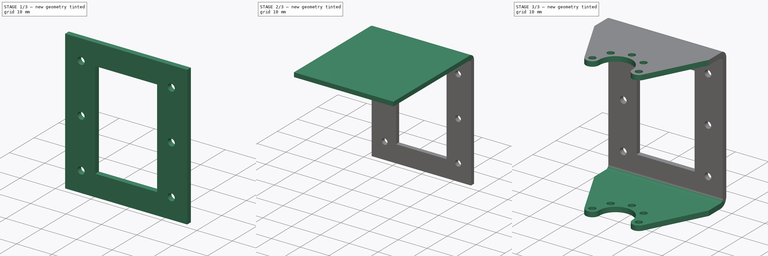
[diagram: build sequence overview — one tinted view per stage of 3, left to right]
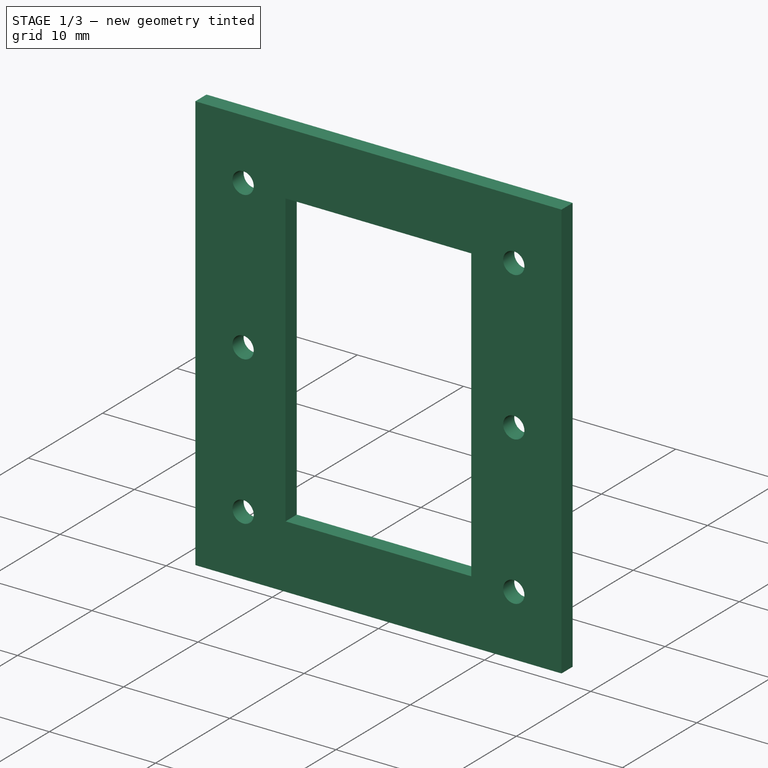
[diagram: stage 1 of 3 — iso view after this stage's code; geometry added in this stage tinted green]
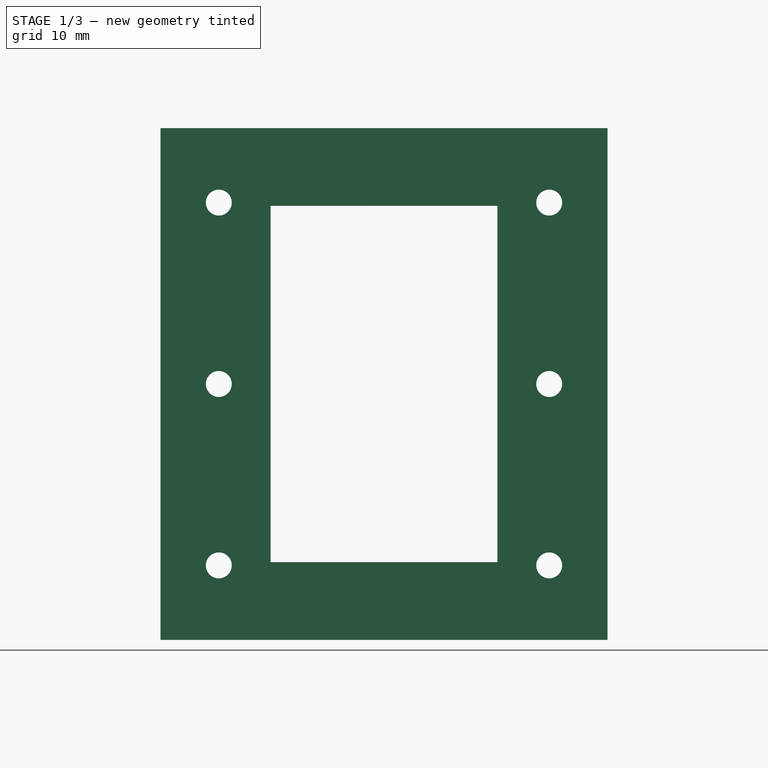
[diagram: stage 1 of 3 — front view after this stage's code; geometry added in this stage tinted green]
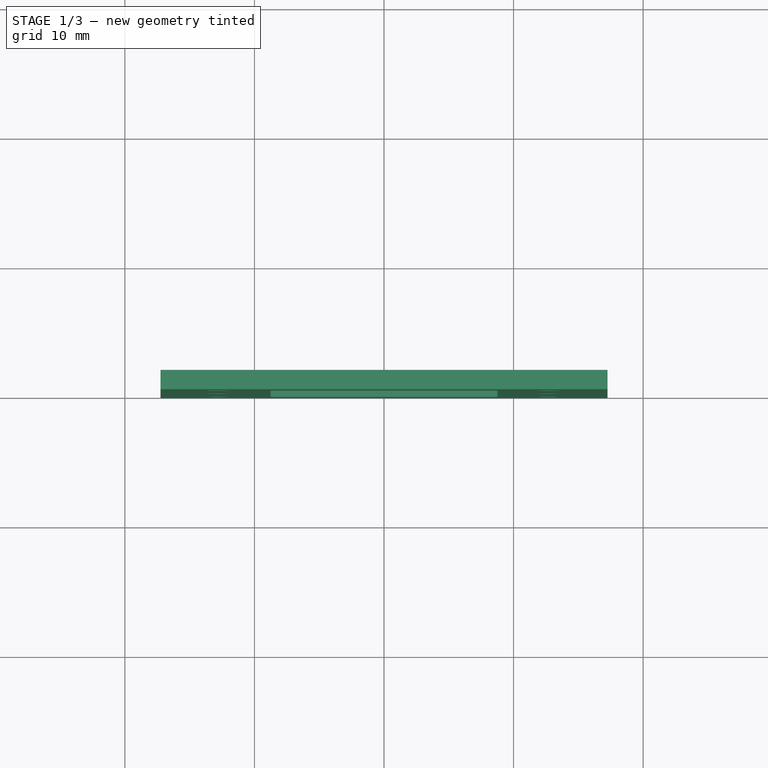
[diagram: stage 1 of 3 — top view after this stage's code; geometry added in this stage tinted green]
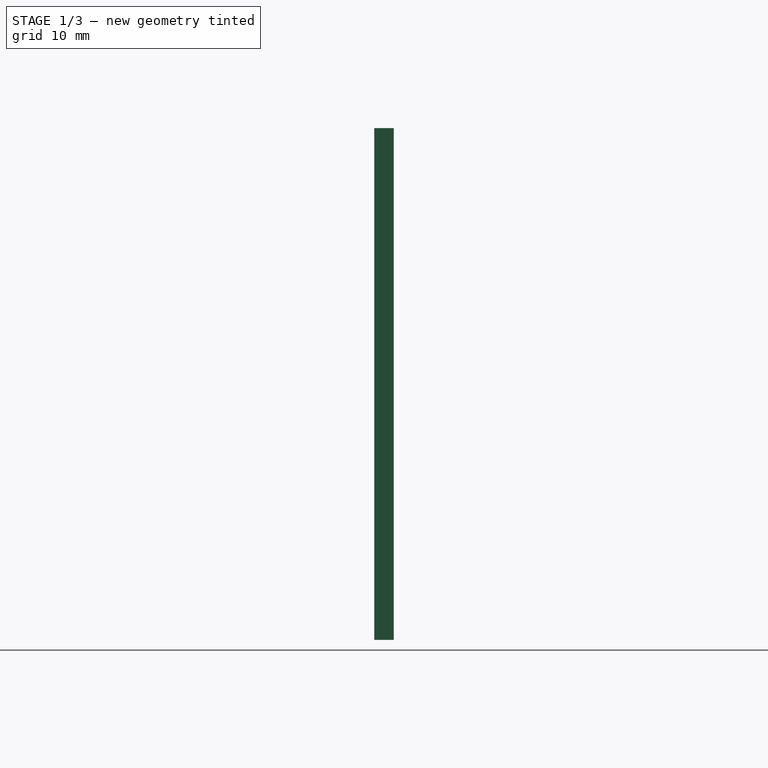
[diagram: stage 1 of 3 — right view after this stage's code; geometry added in this stage tinted green]
FCSTD DOCUMENT  (FreeCAD 0.21R33694 (Git))
Label: MJ_leg_roll
License: All rights reserved
LicenseURL: https://en.wikipedia.org/wiki/All_rights_reserved
objects: Sketcher::SketchObject×3, PartDesign::Pocket×2, PartDesign::FeaturePython×2, Spreadsheet::Sheet×1, PartDesign::Pad×1, PartDesign::Body×1
note: 12 computed .brp shape members not serialized (recipe doc carries the construction recipe); baked Part::Feature solids carry a one-line shape summary decoded from their .brp

FEATURE [Spreadsheet::Sheet] Parameters
  cells = A1='Parameter; B1='Value; C1='Fromula; D1='Tolerance; E1='Comment; A2='BendRadius; B2(BendRadius)=1.5; C2='1.5mm; A3='Thickness; B3(Thickness)=1.5; C3='1.5mm; A4='BendReliefDepth; B4(BendReliefDepth)=0.75; C4='0.75mm; A5='BendReliefWidth; B5(BendReliefWidth)=1.5; C5='1.5mm; A6='CornerReliefSize; B6(CornerReliefSize)=6; C6='6mm; A7='GapSize; B7(GapSize)=1.5; C7='1.5mm; A8='JacobiRadiusSize; B8(JacobiRadiusSize)=1.5; C8='1.5mm; A9='Kファクター; B9(K_____)=0.44; C9='0.44; A10='MinimumRemnant; B10(MinimumRemnant)=3; C10='3mm; A11='SeamGap; B11(SeamGap)=0.01; C11='0.01mm; A12='TransitionRadius; B12(TransitionRadius)=1.5; C12='1.5mm; A13='d0; B13(d0_)=34.5; C13='34.5mm; A14='d1; B14(d1_)=39.5; C14='39.5mm; A15='d10; B15(d10_)=14; C15='14mm; A16='d11; B16(d11_)=25.5; C16='25.5mm; A17='d12; B17(d12_)=6; C17='6mm; A18='d13; B18(d13_)=4; C18='4mm; A19='d14; B19(d14_)=1.5; C19='1.5mm; A20='d15; B20(d15_)=0; C20='0°; A21='d16; B21(d16_)=1.5; C21='1.5mm; A22='d17; B22(d17_)=0.75; C22='0.75mm; A23='d18; B23(d18_)=3; C23='3mm; A24='d19; B24(d19_)=1.5; C24='1.5mm; A25='d2; B25(d2_)=1.5; C25='1.5mm; A26='d20; B26(d20_)=40; C26='40mm; A27='d21; B27(d21_)=90; C27='90°; A28='d22; B28(d22_)=0.68; C28='0.68mm; A29='d23; B29(d23_)=6; C29='6mm; A30='d24; B30(d24_)=1.5; C30='1.5mm; A31='d25; B31(d25_)=1.5; C31='1.5mm; A32='d26; B32(d26_)=2; C32='2mm; A33='d27; B33(d27_)=10; C33='10mm; A34='d28; B34(d28_)=7; C34='7mm; A35='d29; B35(d29_)=5; C35='5; A36='d3; B36(d3_)=2; C36='2mm; A37='d30; B37(d30_)=5; C37='5; A38='d31; B38(d31_)=180; C38='180°; A39='d33; B39(d33_)=23; C39='23mm; A40='d34; B40(d34_)=6; C40='6mm; A41='d35; B41(d35_)=10; C41='10mm; A42='d36; B42(d36_)=0; C42='0°; A43='d37; B43(d37_)=2; C43='2mm; A44='d4; B44(d4_)=2; C44='2mm; A45='d5; B45(d5_)=2; C45='2mm; A46='d6; B46(d6_)=2; C46='2mm; A47='d7; B47(d7_)=2; C47='2mm; A48='d8; B48(d8_)=2; C48='2mm; A49='d9; B49(d9_)=14; C49='14mm
FEATURE [Sketcher::SketchObject] ____________1  label="スケッチ1"
  FullyConstrained = true
  Placement = pos=(0,0,0) rot=(0,0.707107,0.707107;3.14159rad)
  sketch-geometry (6):
    g0: LineSegment StartX=-17.25 StartY=19.75 StartZ=0 EndX=17.25 EndY=19.75 EndZ=0
    g1: LineSegment StartX=17.25 StartY=19.75 StartZ=0 EndX=17.25 EndY=-19.75 EndZ=0
    g2: LineSegment StartX=17.25 StartY=-19.75 StartZ=0 EndX=-17.25 EndY=-19.75 EndZ=0
    g3: LineSegment StartX=-17.25 StartY=-19.75 StartZ=0 EndX=-17.25 EndY=19.75 EndZ=0
    g4: LineSegment StartX=-17.25 StartY=19.75 StartZ=0 EndX=17.25 EndY=-19.75 EndZ=0
    g5: LineSegment StartX=17.25 StartY=19.75 StartZ=0 EndX=-17.25 EndY=-19.75 EndZ=0
  constraints (16):
    c: Perpendicular(g0,g1)
    c: Parallel(g0,g2)
    c: Parallel(g1,g3)
    c: Horizontal(g0)
    c: PointOnObject(g-1,g5)
    c: PointOnObject(g-1,g4)
    c: Coincident(g0,g3)
    c: Coincident(g0,g4)
    c: Coincident(g1,g2)
    c: Coincident(g1,g4)
    c: Coincident(g0,g1)
    c: Coincident(g0,g5)
    c: Coincident(g2,g3)
    c: Coincident(g2,g5)
    c: DistanceX(g2,g2) = 34.5
    c: DistanceY(g3,g3) = 39.5
FEATURE [PartDesign::Pad] Pad
  Direction = (0,1,-2e-16)
  Length = 1.5
  Length2 = 10
  Placement = pos=(0,0,0) rot=(0,0.707107,0.707107;3.14159rad)
  Profile = -> ____________1
  ReferenceAxis = -> ____________1 [N_Axis]
  Type = 0
FEATURE [Sketcher::SketchObject] ____________2  label="スケッチ2"
  FullyConstrained = true
  MapMode = 5
  Placement = pos=(0,1.5,-7e-16) rot=(0,0.707107,0.707107;3.14159rad)
  Support = -> [Pad]
  sketch-geometry (16):
    g0: LineSegment StartX=8.75 StartY=-13.75 StartZ=0 EndX=-8.75 EndY=-13.75 EndZ=0
    g1: LineSegment StartX=-8.75 StartY=-13.75 StartZ=0 EndX=-8.75 EndY=13.75 EndZ=0
    g2: LineSegment StartX=-8.75 StartY=13.75 StartZ=0 EndX=8.75 EndY=13.75 EndZ=0
    g3: LineSegment StartX=8.75 StartY=13.75 StartZ=0 EndX=8.75 EndY=-13.75 EndZ=0
    g4: LineSegment StartX=8.75 StartY=-13.75 StartZ=0 EndX=-8.75 EndY=13.75 EndZ=0
    g5: LineSegment StartX=-8.75 StartY=-13.75 StartZ=0 EndX=8.75 EndY=13.75 EndZ=0
    g6: Circle CenterX=-12.75 CenterY=-14 CenterZ=0 NormalX=0 NormalY=0 NormalZ=1 AngleXU=0 Radius=1
    g7: Circle CenterX=-12.75 CenterY=0 CenterZ=0 NormalX=0 NormalY=0 NormalZ=1 AngleXU=0 Radius=1
    g8: Circle CenterX=-12.75 CenterY=14 CenterZ=0 NormalX=0 NormalY=0 NormalZ=1 AngleXU=0 Radius=1
    g9: Circle CenterX=12.75 CenterY=-14 CenterZ=0 NormalX=0 NormalY=0 NormalZ=1 AngleXU=0 Radius=1
    g10: Circle CenterX=12.75 CenterY=0 CenterZ=0 NormalX=0 NormalY=0 NormalZ=1 AngleXU=0 Radius=1
    g11: Circle CenterX=12.75 CenterY=14 CenterZ=0 NormalX=0 NormalY=0 NormalZ=1 AngleXU=0 Radius=1
    g12: LineSegment StartX=-12.75 StartY=14 StartZ=0 EndX=-12.75 EndY=0 EndZ=0
    g13: LineSegment StartX=-12.75 StartY=-14 StartZ=0 EndX=-12.75 EndY=0 EndZ=0
    g14: LineSegment StartX=12.75 StartY=14 StartZ=0 EndX=12.75 EndY=0 EndZ=0
    g15: LineSegment StartX=12.75 StartY=0 StartZ=0 EndX=12.75 EndY=-14 EndZ=0
  constraints (41):
    c: PointOnObject(g-1,g5)
    c: PointOnObject(g-1,g4)
    c: Coincident(g0,g3)
    c: Coincident(g0,g4)
    c: Coincident(g1,g2)
    c: Coincident(g1,g4)
    c: Coincident(g0,g1)
    c: Coincident(g0,g5)
    c: Coincident(g2,g3)
    c: Coincident(g2,g5)
    c: Diameter(g8) = 2
    c: DistanceX(g2,g2) = 17.5
    c: DistanceY(g3,g3) = 27.5
    c: Vertical(g3)
    c: Vertical(g1)
    c: Horizontal(g2)
    c: Horizontal(g0)
    c: PointOnObject(g7,g-1)
    c: Coincident(g12,g8)
    c: Coincident(g12,g7)
    c: Vertical(g12)
    c: Coincident(g13,g6)
    c: Coincident(g13,g7)
    c: Vertical(g13)
    c: Coincident(g14,g11)
    c: Coincident(g14,g10)
    c: Vertical(g14)
    c: Coincident(g15,g10)
    c: Coincident(g15,g9)
    c: Vertical(g15)
    c: Equal(g12,g13)
    c: Equal(g13,g14)
    c: Equal(g14,g15)
    c: DistanceX(g7,g-1) = 12.75
    c: DistanceY(g12,g12) = 14
    c: Symmetric(g7,g10,g-2)
    c: Equal(g7,g6)
    c: Equal(g6,g9)
    c: Equal(g9,g10)
    c: Equal(g10,g11)
    c: Equal(g11,g8)
FEATURE [PartDesign::Pocket] Pocket
  BaseFeature = -> Pad
  Direction = (1e-16,-1,2e-16)
  Length = 5
  Length2 = 5
  Placement = pos=(0,0,0) rot=(0,0.707107,0.707107;3.14159rad)
  Profile = -> ____________2
  ReferenceAxis = -> ____________2 [N_Axis]
  Type = 1
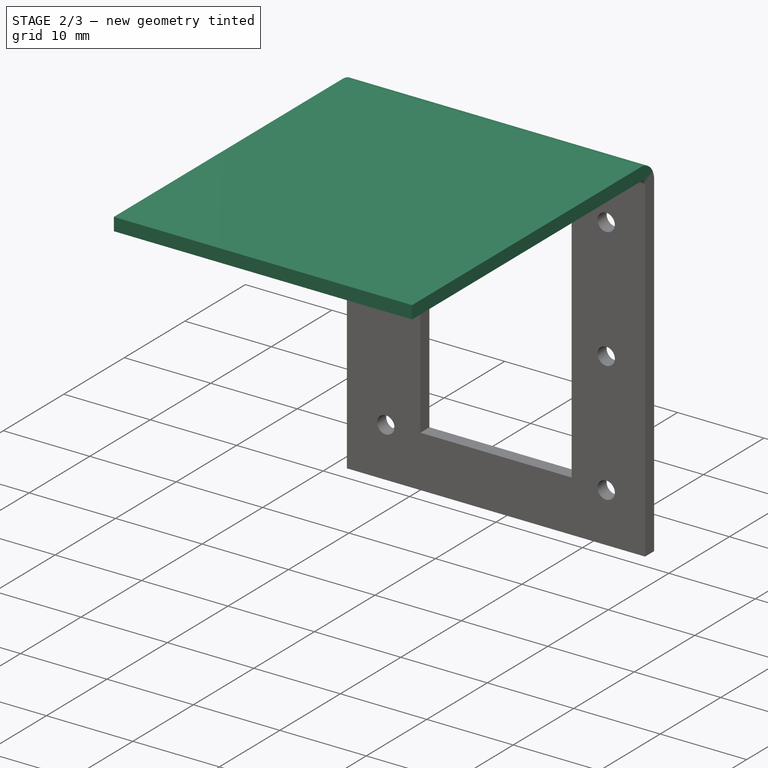
[diagram: stage 2 of 3 — iso view after this stage's code; geometry added in this stage tinted green]
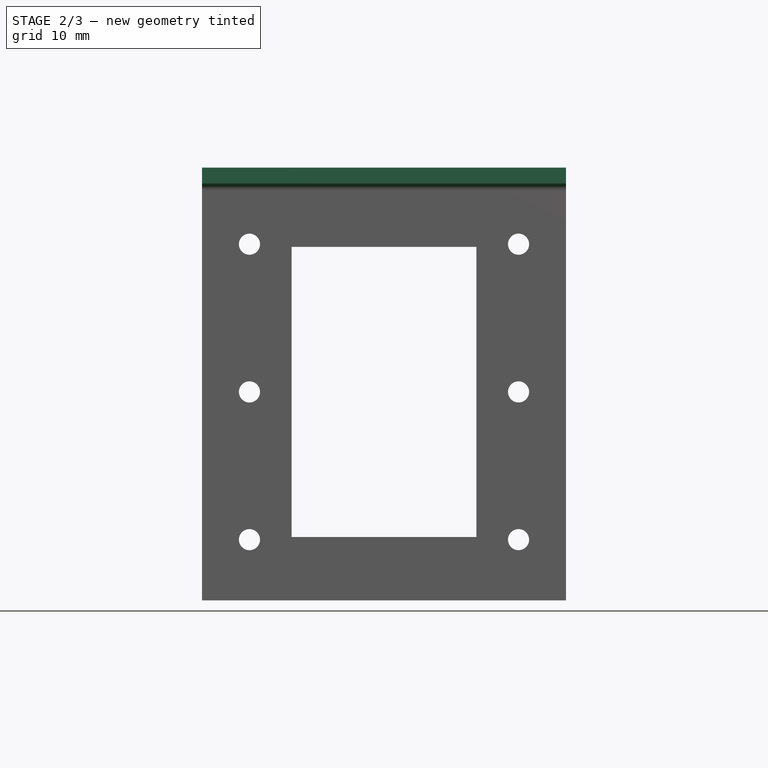
[diagram: stage 2 of 3 — front view after this stage's code; geometry added in this stage tinted green]
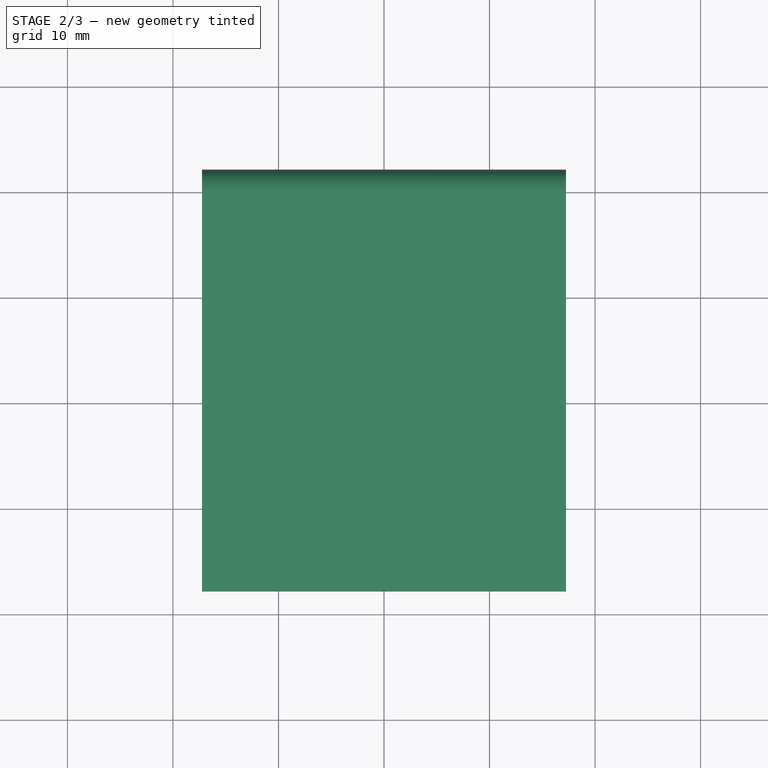
[diagram: stage 2 of 3 — top view after this stage's code; geometry added in this stage tinted green]
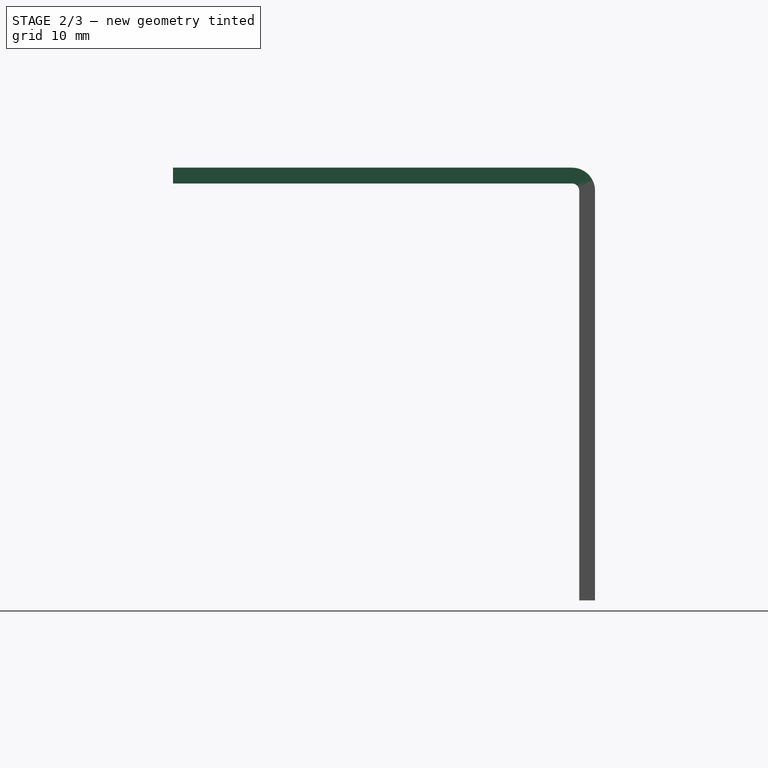
[diagram: stage 2 of 3 — right view after this stage's code; geometry added in this stage tinted green]
FEATURE [PartDesign::FeaturePython] Bend  # WARN: FeaturePython — macro-defined, semantics opaque (R4)
  AutoMiter = true
  BaseFeature = -> Pocket
  BendType = 2
  LengthList = [40]
  LengthSpec = 3
  ReliefFactor = 0.7
  UseReliefFactor = false
  angle = 90
  baseObject = -> Pocket [Face1]
  bendAList = [90]
  extend1 = 0
  extend2 = 0
  gap1 = 0
  gap2 = 0
  invert = true
  kfactor = 0.5
  length = 40
  maxExtendDist = 5
  minGap = 0.2
  minReliefGap = 1
  miterangle1 = 0
  miterangle2 = 0
  offset = 0
  radius = 0.68
  reliefType = 0
  reliefd = 1
  reliefw = 0.8
  sketchflip = false
  sketchinvert = false
  unfold = false
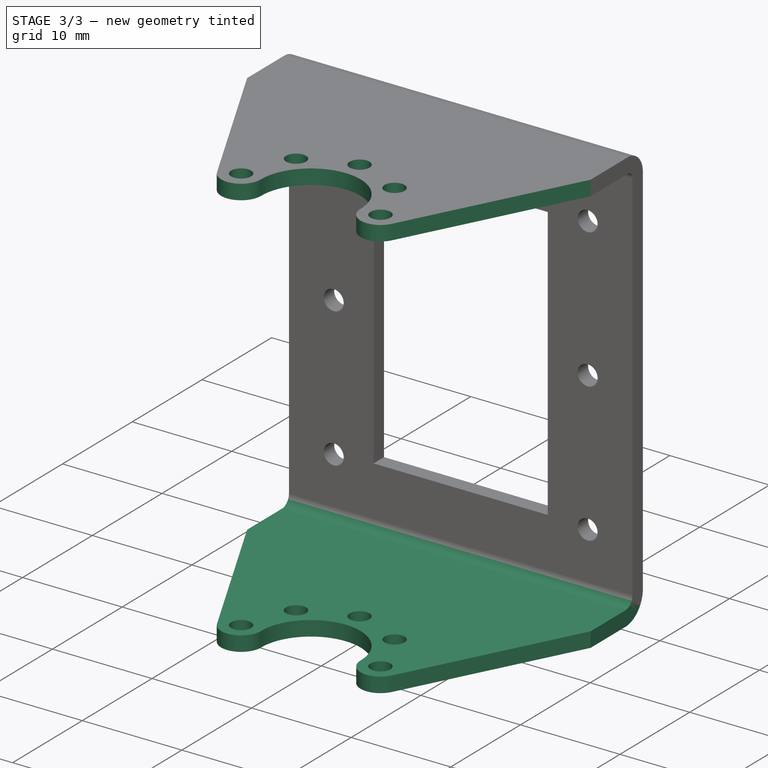
[diagram: stage 3 of 3 — iso view after this stage's code; geometry added in this stage tinted green]
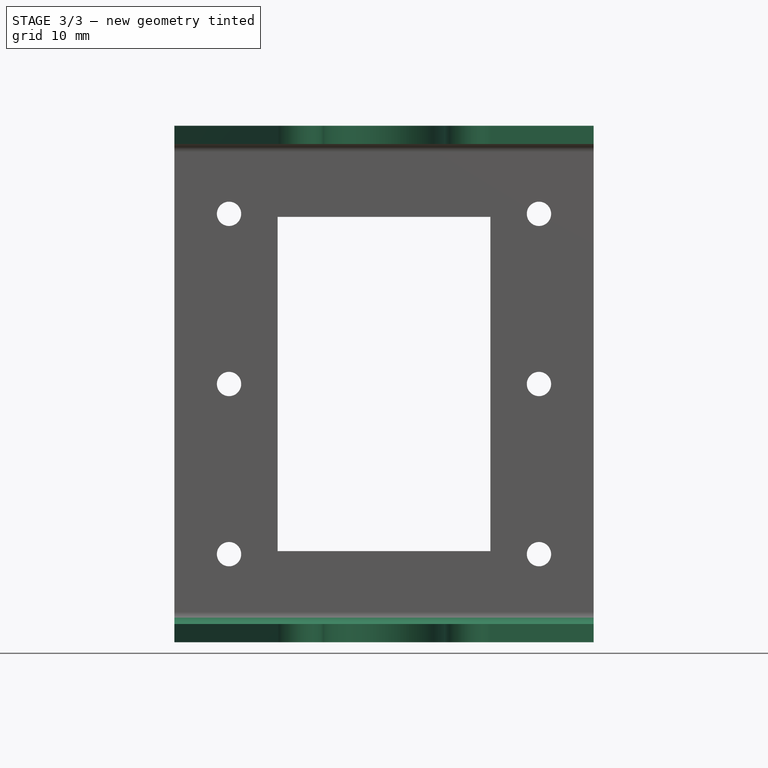
[diagram: stage 3 of 3 — front view after this stage's code; geometry added in this stage tinted green]
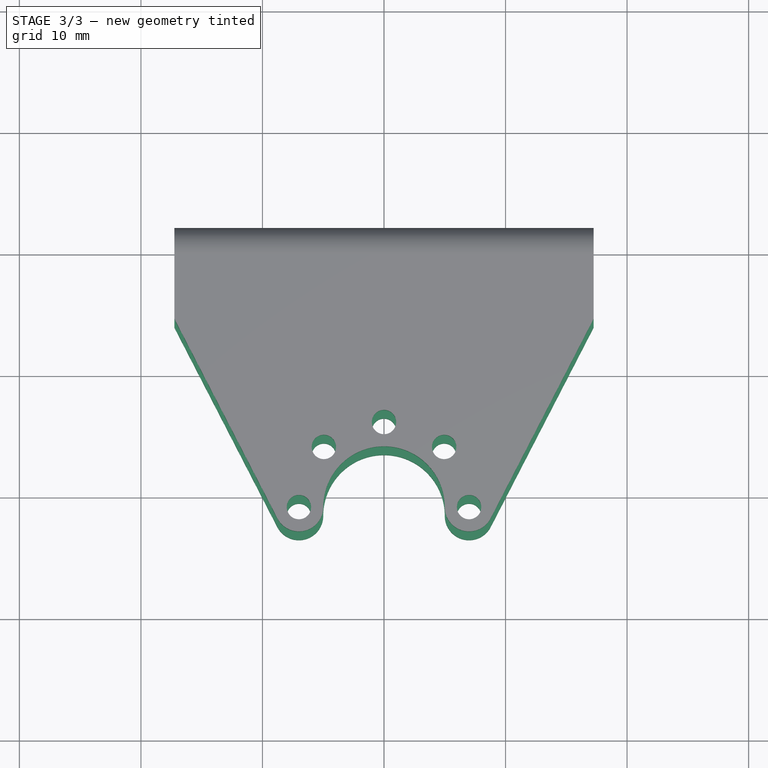
[diagram: stage 3 of 3 — top view after this stage's code; geometry added in this stage tinted green]
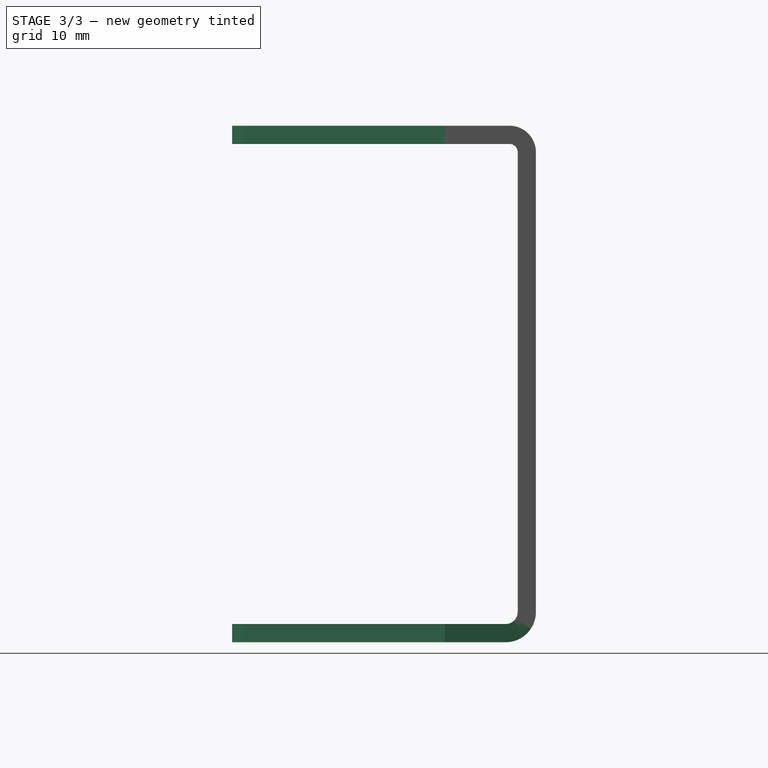
[diagram: stage 3 of 3 — right view after this stage's code; geometry added in this stage tinted green]
FEATURE [PartDesign::FeaturePython] Bend001  # WARN: FeaturePython — macro-defined, semantics opaque (R4)
  AutoMiter = true
  BaseFeature = -> Bend
  BendType = 2
  LengthList = [40]
  LengthSpec = 3
  ReliefFactor = 0.7
  UseReliefFactor = false
  angle = 90
  baseObject = -> Bend [Edge24]
  bendAList = [90]
  extend1 = 0
  extend2 = 0
  gap1 = 0
  gap2 = 0
  invert = true
  kfactor = 0.5
  length = 40
  maxExtendDist = 5
  minGap = 0.2
  minReliefGap = 1
  miterangle1 = 0
  miterangle2 = 0
  offset = 0
  radius = 1
  reliefType = 0
  reliefd = 1
  reliefw = 0.8
  sketchflip = false
  sketchinvert = false
  unfold = false
FEATURE [Sketcher::SketchObject] ____________4  label="スケッチ4"
  ExternalGeometry = -> [Bend001]
  FullyConstrained = true
  MapMode = 5
  Placement = pos=(-3.6e-15,4.7e-15,21.25) rot=(0,0,1;0rad)
  Support = -> [Bend001]
  sketch-geometry (16):
    g0: Circle CenterX=-7 CenterY=-21.5 CenterZ=0 NormalX=0 NormalY=0 NormalZ=1 AngleXU=0 Radius=1
    g1: ArcOfCircle CenterX=0 CenterY=-21.5 CenterZ=0 NormalX=0 NormalY=0 NormalZ=1 AngleXU=0 Radius=5 StartAngle=0 EndAngle=3.14159
    g2: Circle CenterX=-4.94975 CenterY=-16.5503 CenterZ=0 NormalX=0 NormalY=0 NormalZ=1 AngleXU=0 Radius=1
    g3: Circle CenterX=0 CenterY=-14.5 CenterZ=0 NormalX=0 NormalY=0 NormalZ=1 AngleXU=0 Radius=1
    g4: Circle CenterX=4.94975 CenterY=-16.5503 CenterZ=0 NormalX=0 NormalY=0 NormalZ=1 AngleXU=0 Radius=1
    g5: Circle CenterX=7 CenterY=-21.5 CenterZ=0 NormalX=0 NormalY=0 NormalZ=1 AngleXU=0 Radius=1
    g6: LineSegment StartX=-17.25 StartY=-6 StartZ=0 EndX=-8.77727 EndY=-22.4172 EndZ=0
    g7: LineSegment StartX=17.25 StartY=-6 StartZ=0 EndX=8.77727 EndY=-22.4172 EndZ=0
    g8: ArcOfCircle CenterX=-7 CenterY=-21.5 CenterZ=0 NormalX=0 NormalY=0 NormalZ=1 AngleXU=0 Radius=2 StartAngle=3.61803 EndAngle=6.28319
    g9: ArcOfCircle CenterX=7 CenterY=-21.5 CenterZ=0 NormalX=0 NormalY=0 NormalZ=1 AngleXU=0 Radius=2 StartAngle=3.14159 EndAngle=5.80675
    g10: LineSegment StartX=-17.25 StartY=-38.5 StartZ=0 EndX=-17.25 EndY=-6 EndZ=0
    g11: LineSegment StartX=-17.25 StartY=-38.5 StartZ=0 EndX=17.25 EndY=-38.5 EndZ=0
    g12: LineSegment StartX=17.25 StartY=-38.5 StartZ=0 EndX=17.25 EndY=-6 EndZ=0
    g13: Circle CenterX=0 CenterY=-21.5 CenterZ=0 NormalX=0 NormalY=0 NormalZ=1 AngleXU=0 Radius=7
    g14: LineSegment StartX=-4.94975 StartY=-16.5503 StartZ=0 EndX=0 EndY=-21.5 EndZ=0
    g15: LineSegment StartX=0 StartY=-21.5 StartZ=0 EndX=4.94975 EndY=-16.5503 EndZ=0
  constraints (40):
    c: Diameter(g0) = 2  'd26'
    c: Diameter(g1) = 10  'd27'
    c: Coincident(g10,g6)
    c: Vertical(g10)
    c: Coincident(g11,g-4)
    c: Coincident(g12,g-5)
    c: Coincident(g12,g7)
    c: Vertical(g12)
    c: Coincident(g10,g11)
    c: Coincident(g11,g12)
    c: DistanceY(g12,g-6) = 7.5
    c: Horizontal(g6,g7)
    c: Equal(g5,g4)
    c: Equal(g4,g3)
    c: Equal(g3,g2)
    c: Equal(g2,g0)
    c: DistanceY(g1,g-6) = 23
    c: Coincident(g13,g1)
    c: PointOnObject(g0,g13)
    c: PointOnObject(g2,g13)
    c: PointOnObject(g3,g13)
    c: PointOnObject(g4,g13)
    c: PointOnObject(g5,g13)
    c: Diameter(g13) = 14
    c: Tangent(g6,g8) = -1.5708
    c: Tangent(g1,g8) = 1.5708
    c: PointOnObject(g13,g-2)
    c: Coincident(g8,g0)
    c: Tangent(g7,g9) = 1.5708
    c: Tangent(g1,g9) = 1.5708
    c: Coincident(g9,g5)
    c: Horizontal(g0,g1)
    c: Horizontal(g13,g5)
    c: PointOnObject(g3,g-2)
    c: Coincident(g14,g2)
    c: Coincident(g14,g1)
    c: Coincident(g15,g4)
    c: Coincident(g1,g15)
    c: Angle(g15,g-2) = 0.785398
    c: Angle(g-2,g14) = 0.785398
FEATURE [PartDesign::Pocket] Pocket001
  BaseFeature = -> Bend001
  Direction = (-2e-16,-3e-16,-1)
  Length = 5
  Length2 = 5
  Profile = -> ____________4
  ReferenceAxis = -> ____________4 [N_Axis]
  Type = 1
FEATURE [PartDesign::Body] Body
  Group = -> [____________1,____________2,____________4,Pad,Pocket,Bend,Bend001,Pocket001]
  Origin = -> Origin
  Tip = -> Pocket001
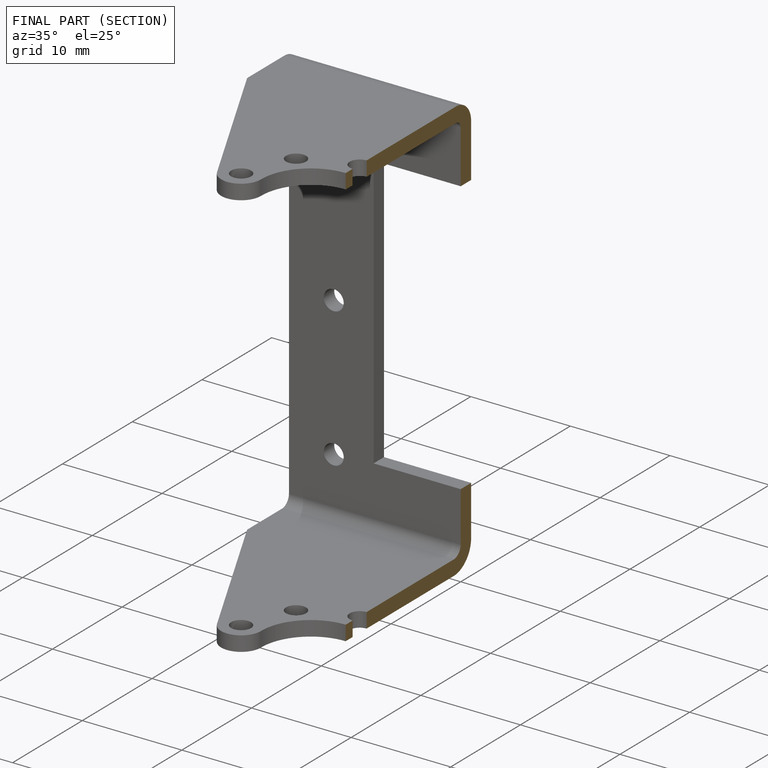
[diagram: finished part — half-section view (interior)]
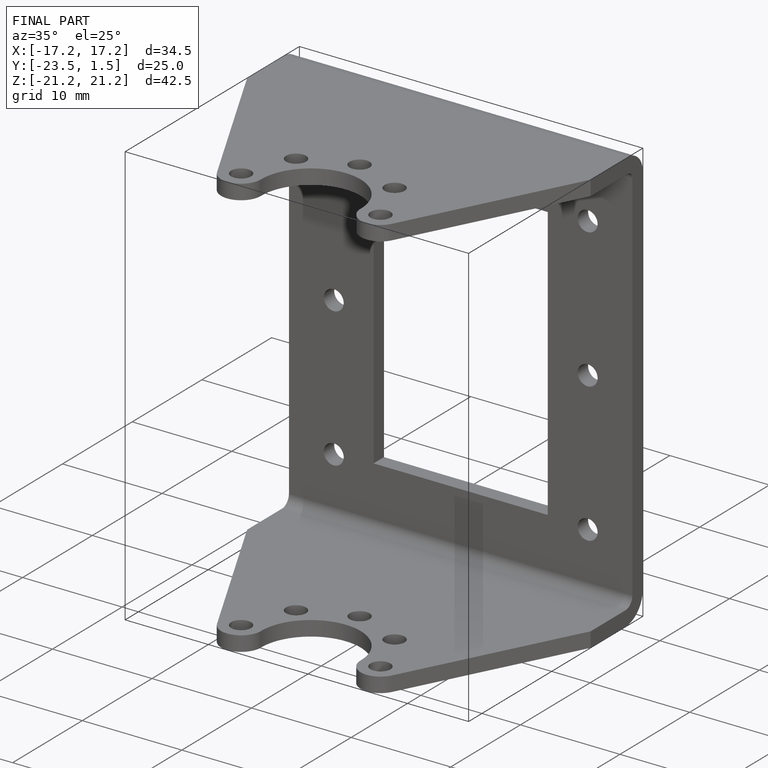
[diagram: finished part — iso view with bounding-box wireframe]
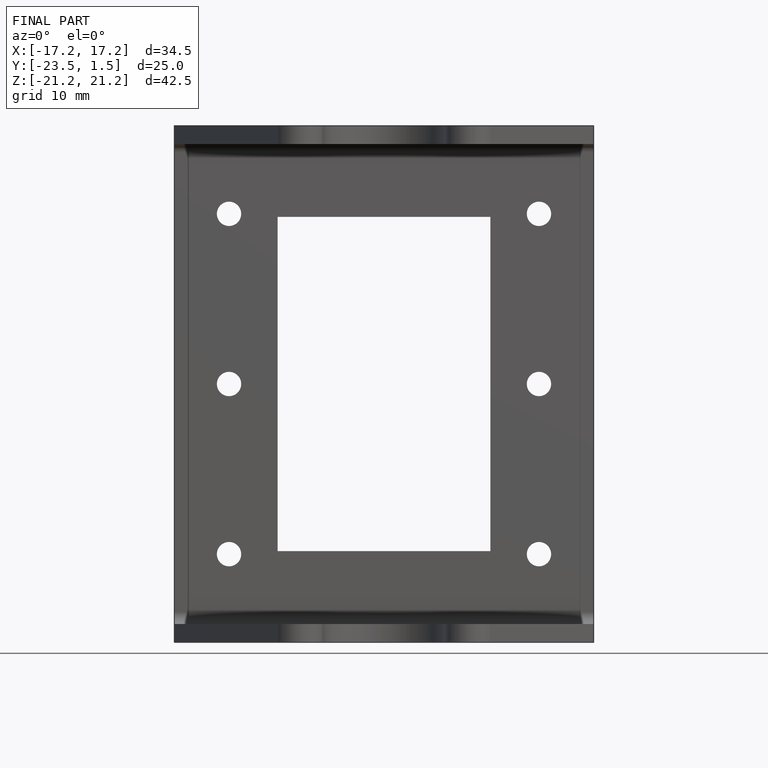
[diagram: finished part — front view with bounding-box wireframe]
